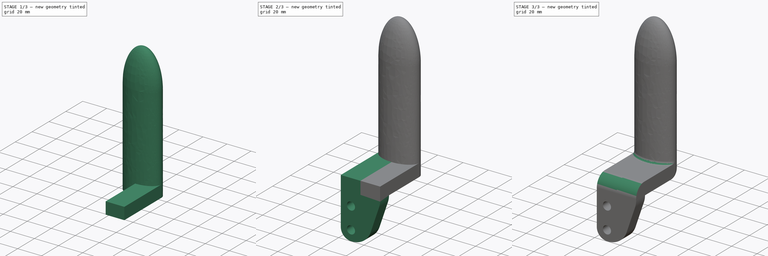
[diagram: build sequence overview — one tinted view per stage of 3, left to right]
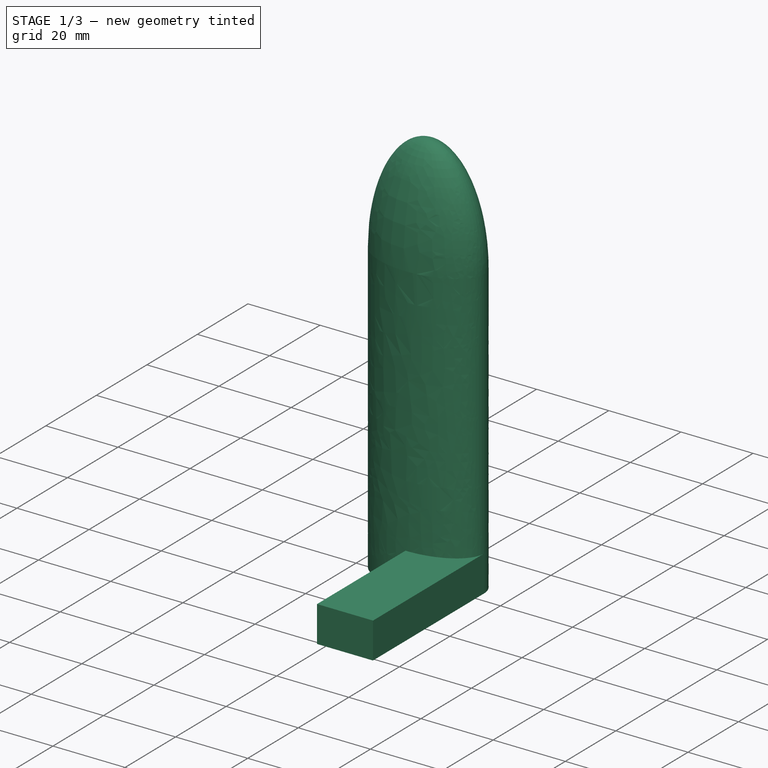
[diagram: stage 1 of 3 — iso view after this stage's code; geometry added in this stage tinted green]
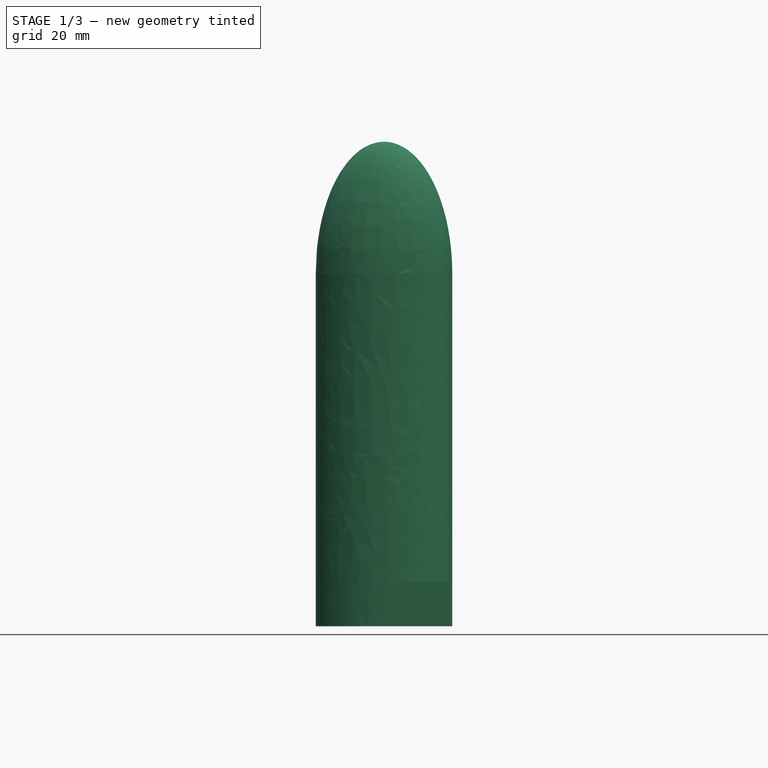
[diagram: stage 1 of 3 — front view after this stage's code; geometry added in this stage tinted green]
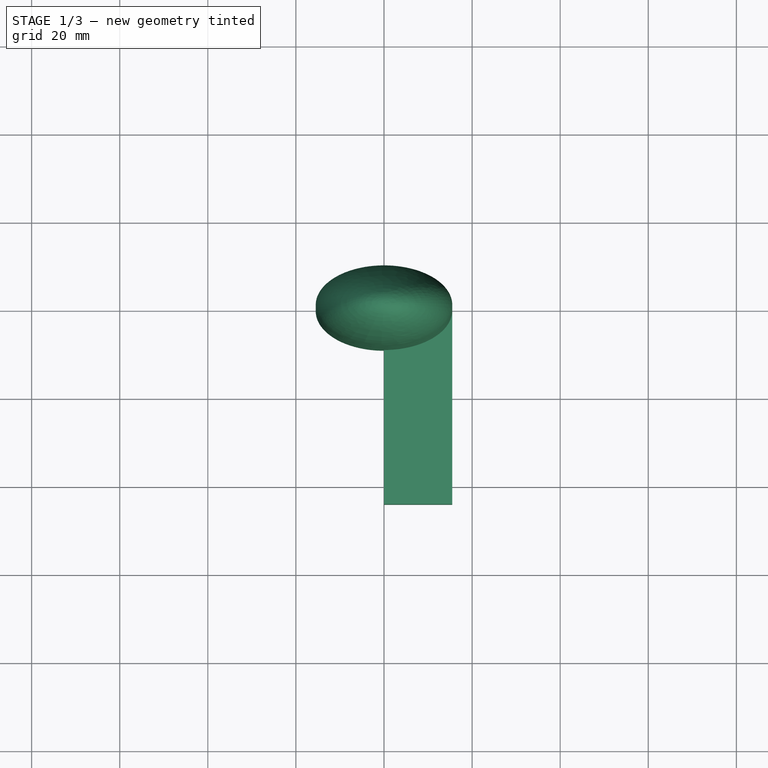
[diagram: stage 1 of 3 — top view after this stage's code; geometry added in this stage tinted green]
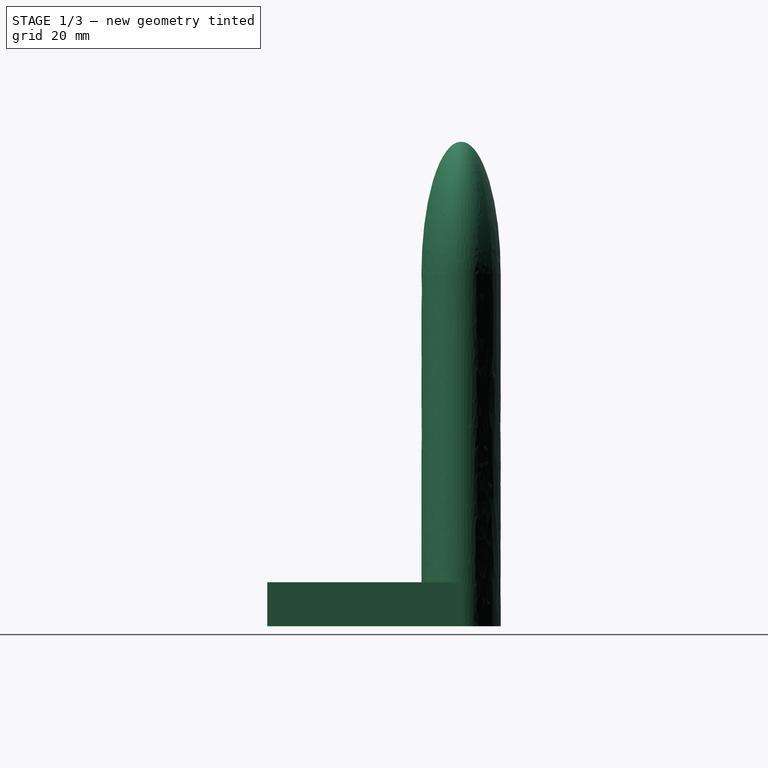
[diagram: stage 1 of 3 — right view after this stage's code; geometry added in this stage tinted green]
FCSTD DOCUMENT  (FreeCAD 0.19R24291 (Git))
Label: Крепление для диспенсера
License: All rights reserved
LicenseURL: http://en.wikipedia.org/wiki/All_rights_reserved
objects: Sketcher::SketchObject×7, PartDesign::Pad×3, Spreadsheet::Sheet×1, PartDesign::AdditiveEllipsoid×1, PartDesign::Plane×1, PartDesign::Mirrored×1, PartDesign::Fillet×1, PartDesign::AdditivePipe×1, PartDesign::SubtractivePipe×1, PartDesign::Body×1
note: 24 computed .brp shape members not serialized (recipe doc carries the construction recipe); baked Part::Feature solids carry a one-line shape summary decoded from their .brp

FEATURE [Spreadsheet::Sheet] Spreadsheet
  cells = A1(x)=31; A2(y)=18; A3(length)=110; A4(cut_height)=30
FEATURE [Sketcher::SketchObject] Sketch
  FullyConstrained = true
  MapMode = 5
  Support = -> [XY_Plane]
  expr: Constraints[6] = Spreadsheet.x
  expr: Constraints[7] = Spreadsheet.y
  sketch-geometry (5):
    g0: Ellipse CenterX=0 CenterY=0 CenterZ=0 NormalX=0 NormalY=0 NormalZ=1 MajorRadius=15.5 MinorRadius=9 AngleXU=0
    g1: LineSegment StartX=15.5 StartY=0 StartZ=0 EndX=-15.5 EndY=0 EndZ=0
    g2: LineSegment StartX=0 StartY=9 StartZ=0 EndX=0 EndY=-9 EndZ=0
    g3: GeomPoint X=12.6194 Y=0 Z=0
    g4: GeomPoint X=-12.6194 Y=0 Z=0
  constraints (5):
    c: InternalAlignment(g1-g4 -> g0) x4
    c: Coincident(g0,g-1)
    c: Horizontal(g1)
    c: Distance(g1) = 31
    c: Distance(g2) = 18
FEATURE [PartDesign::Pad] Pad
  Direction = (1,1,1)
  Length = 80
  Length2 = 100
  Profile = -> Sketch
  Type = 0
  expr: Length = Spreadsheet.length - Spreadsheet.cut_height
FEATURE [PartDesign::AdditiveEllipsoid] Ellipsoid
  Angle1 = -90
  Angle2 = 90
  Angle3 = 360
  AttacherType = Attacher::AttachEngine3D
  AttachmentOffset = pos=(0,0,80) rot=(0,0,1;0rad)
  BaseFeature = -> Pad
  MapMode = 5
  Placement = pos=(0,0,80) rot=(0,0,1;0rad)
  Radius1 = 30
  Radius2 = 15.5
  Radius3 = 9
  Support = -> [XY_Plane]
  expr: Radius1 = Spreadsheet.cut_height
  expr: Radius2 = Spreadsheet.x / 2
  expr: Radius3 = Spreadsheet.y / 2
  expr: .AttachmentOffset.Base.z = Spreadsheet.length - Spreadsheet.cut_height
FEATURE [Sketcher::SketchObject] Sketch006
  FullyConstrained = true
  MapMode = 5
  Support = -> [XY_Plane]
  expr: Constraints[9] = Spreadsheet.x / 2
  sketch-geometry (4):
    g0: LineSegment StartX=0 StartY=0 StartZ=0 EndX=15.5 EndY=0 EndZ=0
    g1: LineSegment StartX=15.5 StartY=0 StartZ=0 EndX=15.5 EndY=-44 EndZ=0
    g2: LineSegment StartX=15.5 StartY=-44 StartZ=0 EndX=0 EndY=-44 EndZ=0
    g3: LineSegment StartX=0 StartY=-44 StartZ=0 EndX=0 EndY=0 EndZ=0
  constraints (11):
    c: Coincident(g0,g1)
    c: Coincident(g1,g2)
    c: Coincident(g2,g3)
    c: Coincident(g3,g0)
    c: Horizontal(g0)
    c: Horizontal(g2)
    c: Vertical(g1)
    c: Vertical(g3)
    c: Coincident(g0,g-1)
    c: Distance(g0) = 15.5
    c: Distance(g1) = 44
FEATURE [PartDesign::Pad] Pad001
  BaseFeature = -> Ellipsoid
  Direction = (1,1,1)
  Length = 10
  Length2 = 100
  Placement = pos=(0,0,80) rot=(0,0,1;0rad)
  Profile = -> Sketch006
  Type = 0
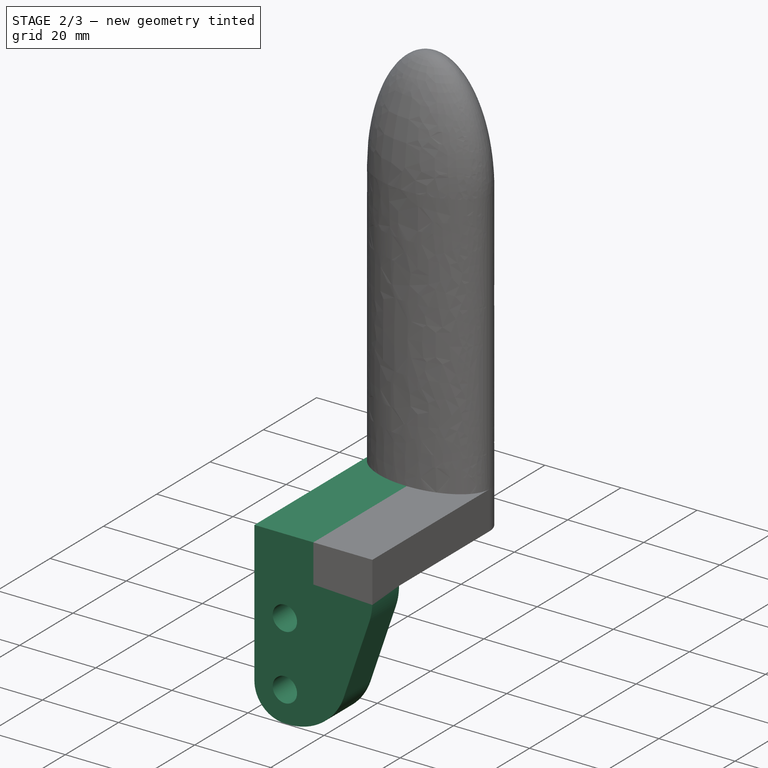
[diagram: stage 2 of 3 — iso view after this stage's code; geometry added in this stage tinted green]
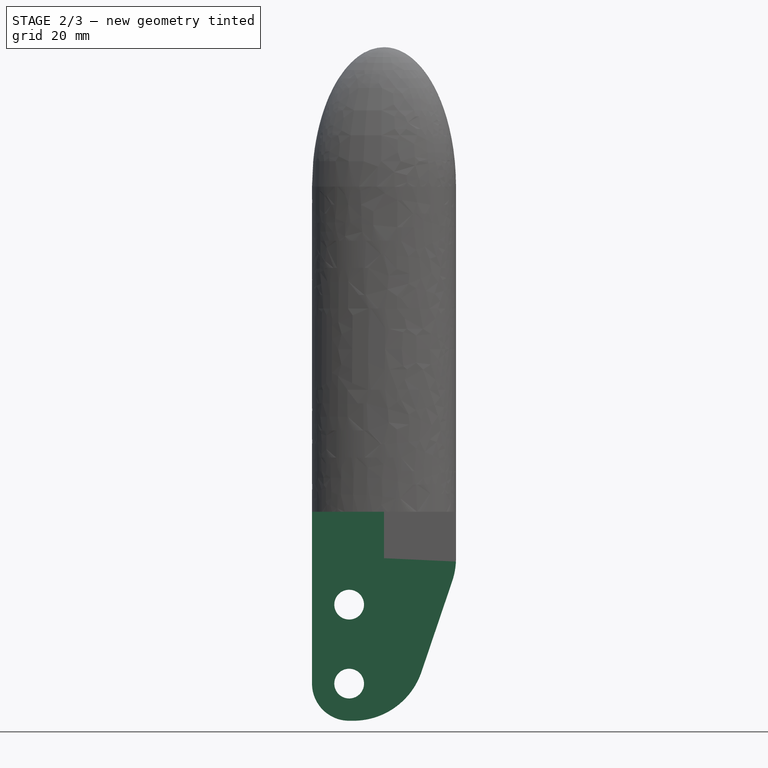
[diagram: stage 2 of 3 — front view after this stage's code; geometry added in this stage tinted green]
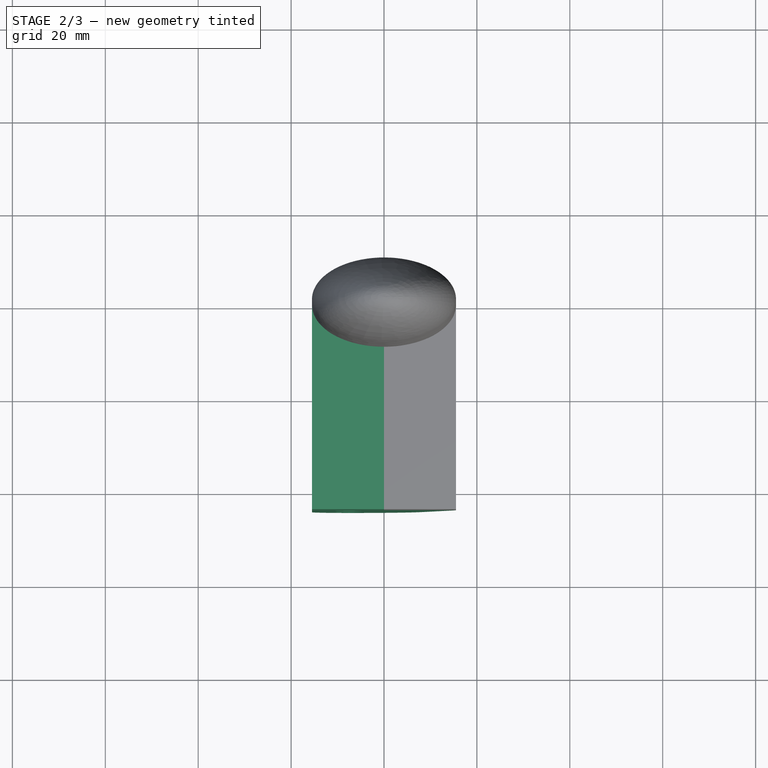
[diagram: stage 2 of 3 — top view after this stage's code; geometry added in this stage tinted green]
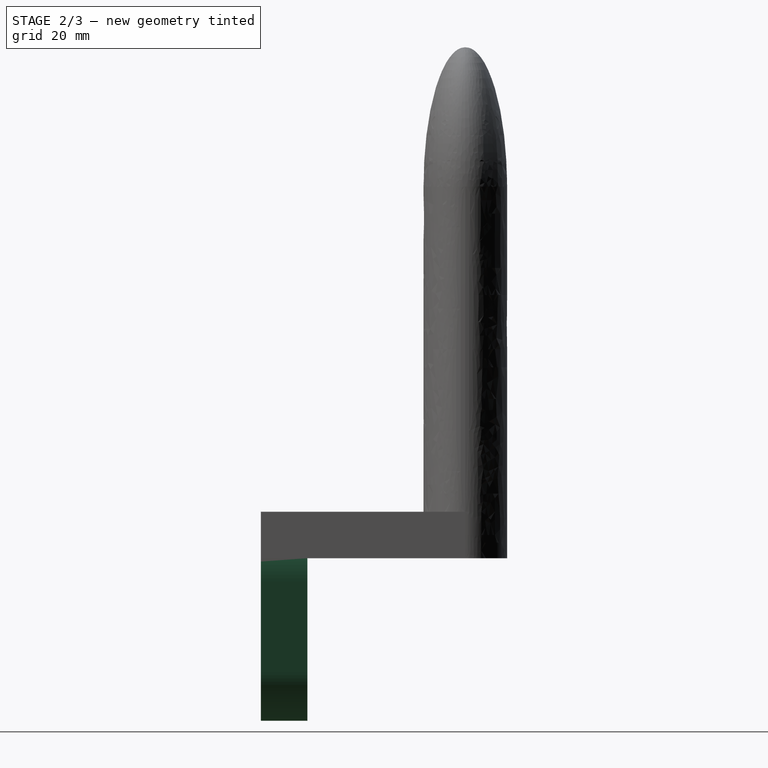
[diagram: stage 2 of 3 — right view after this stage's code; geometry added in this stage tinted green]
FEATURE [PartDesign::Plane] DatumPlane
  AttachmentOffset = pos=(0,0,44) rot=(0,0,1;0rad)
  Length = 67.0294
  MapMode = 5
  Placement = pos=(0,-44,-9.8e-15) rot=(1,0,0;1.5708rad)
  ResizeMode = 0
  Support = -> [XZ_Plane]
  Width = 162.029
FEATURE [Sketcher::SketchObject] Sketch007
  FullyConstrained = true
  MapMode = 5
  Placement = pos=(0,-44,-9.8e-15) rot=(1,0,0;1.5708rad)
  Support = -> [DatumPlane]
  expr: Constraints[14] = Spreadsheet.x
  expr: Constraints[33] = 8
  expr: Constraints[32] = 10
  sketch-geometry (14):
    g0: Circle CenterX=-7.5 CenterY=-27 CenterZ=0 NormalX=0 NormalY=0 NormalZ=1 AngleXU=0 Radius=3.2
    g1: Circle CenterX=-7.5 CenterY=-10 CenterZ=0 NormalX=0 NormalY=0 NormalZ=1 AngleXU=0 Radius=3.2
    g2: ArcOfCircle CenterX=0 CenterY=0 CenterZ=0 NormalX=0 NormalY=0 NormalZ=1 AngleXU=0 Radius=15.5 StartAngle=5.9563 EndAngle=6.28319
    g3: LineSegment StartX=-15.5 StartY=0 StartZ=0 EndX=-15.5 EndY=-27 EndZ=0
    g4: LineSegment StartX=-7.5 StartY=-35 StartZ=0 EndX=-6.61142 EndY=-35 EndZ=0
    g5: LineSegment StartX=8.06781 StartY=-24.477 StartZ=0 EndX=14.6792 EndY=-4.97692 EndZ=0
    g6: LineSegment StartX=15.5 StartY=0 StartZ=0 EndX=0 EndY=0 EndZ=0
    g7: LineSegment StartX=0 StartY=0 StartZ=0 EndX=-15.5 EndY=0 EndZ=0
    g8: ArcOfCircle CenterX=-7.5 CenterY=-27 CenterZ=0 NormalX=0 NormalY=0 NormalZ=1 AngleXU=0 Radius=8 StartAngle=3.14159 EndAngle=4.71239
    g9: ArcOfCircle CenterX=-6.61142 CenterY=-19.5 CenterZ=0 NormalX=0 NormalY=0 NormalZ=1 AngleXU=0 Radius=15.5 StartAngle=4.71239 EndAngle=5.9563
    g10: LineSegment StartX=-6.61142 StartY=-35 StartZ=0 EndX=4.5 EndY=-35 EndZ=0
    g11: LineSegment StartX=4.5 StartY=-35 StartZ=0 EndX=8.06781 EndY=-24.477 EndZ=0
    g12: LineSegment StartX=-15.5 StartY=-27 StartZ=0 EndX=-15.5 EndY=-35 EndZ=0
    g13: LineSegment StartX=-7.5 StartY=-35 StartZ=0 EndX=-15.5 EndY=-35 EndZ=0
  constraints (36):
    c: Vertical(g0,g1)
    c: Equal(g0,g1)
    c: Diameter(g0) = 6.4
    c: Coincident(g2,g-1)
    c: Vertical(g3)
    c: Horizontal(g4)
    c: Coincident(g5,g2)
    c: Coincident(g6,g2)
    c: Coincident(g6,g2)
    c: Horizontal(g6)
    c: Coincident(g7,g2)
    c: Coincident(g7,g3)
    c: Horizontal(g7)
    c: Equal(g6,g7)
    c: Distance(g2,g3) = 31
    c: Tangent(g2,g5)
    c: Tangent(g4,g8) = -1.5708
    c: Tangent(g3,g8) = -1.5708
    c: Tangent(g4,g9) = -1.5708
    c: Tangent(g5,g9) = -1.5708
    c: Coincident(g10,g4)
    c: Horizontal(g10)
    c: Coincident(g11,g10)
    c: Coincident(g11,g5)
    c: Parallel(g5,g11)
    c: Coincident(g12,g3)
    c: Vertical(g12)
    c: Coincident(g13,g4)
    c: Coincident(g13,g12)
    c: Horizontal(g13)
    c: Distance(g10,g12) = 20
    c: DistanceY(g4,g2) = 35
    c: Distance(g1,g7) = 10
    c: Distance(g1,g3) = 8
    c: Coincident(g0,g8)
    c: Equal(g9,g2)
FEATURE [PartDesign::Mirrored] Mirrored
  BaseFeature = -> Pad001
  MirrorPlane = -> Sketch006 [V_Axis]
  Originals = -> [Pad001]
  Placement = pos=(0,0,80) rot=(0,0,1;0rad)
FEATURE [PartDesign::Pad] Pad002
  BaseFeature = -> Mirrored
  Direction = (1,1,1)
  Length = 10
  Length2 = 100
  Placement = pos=(0,0,80) rot=(0,0,1;0rad)
  Profile = -> Sketch007
  Reversed = true
  Type = 0
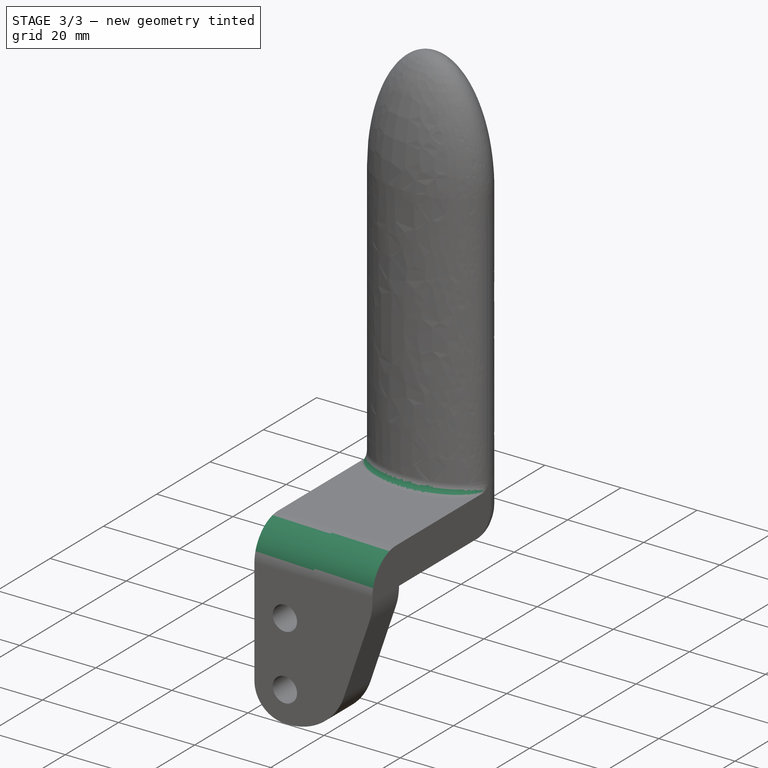
[diagram: stage 3 of 3 — iso view after this stage's code; geometry added in this stage tinted green]
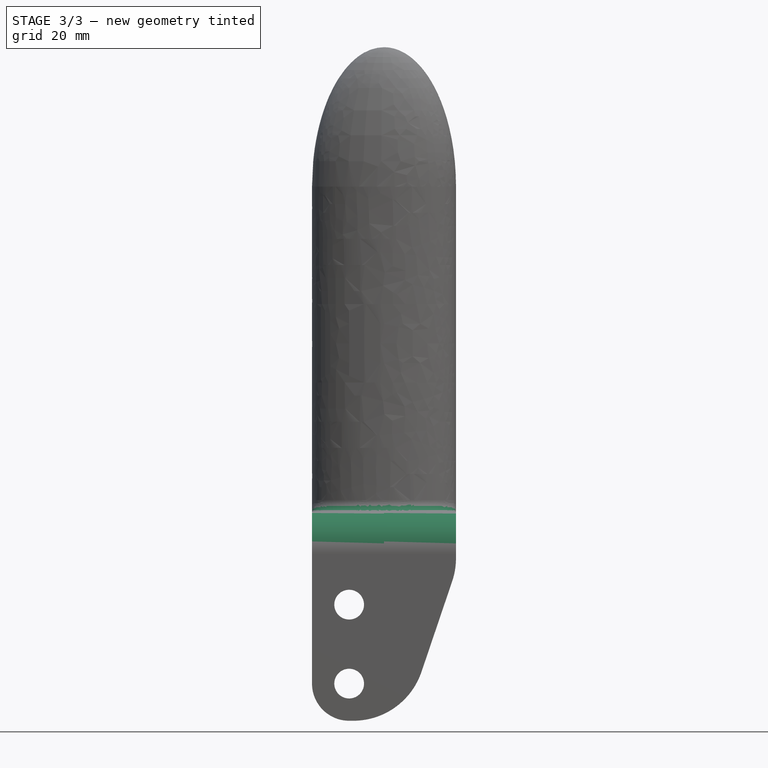
[diagram: stage 3 of 3 — front view after this stage's code; geometry added in this stage tinted green]
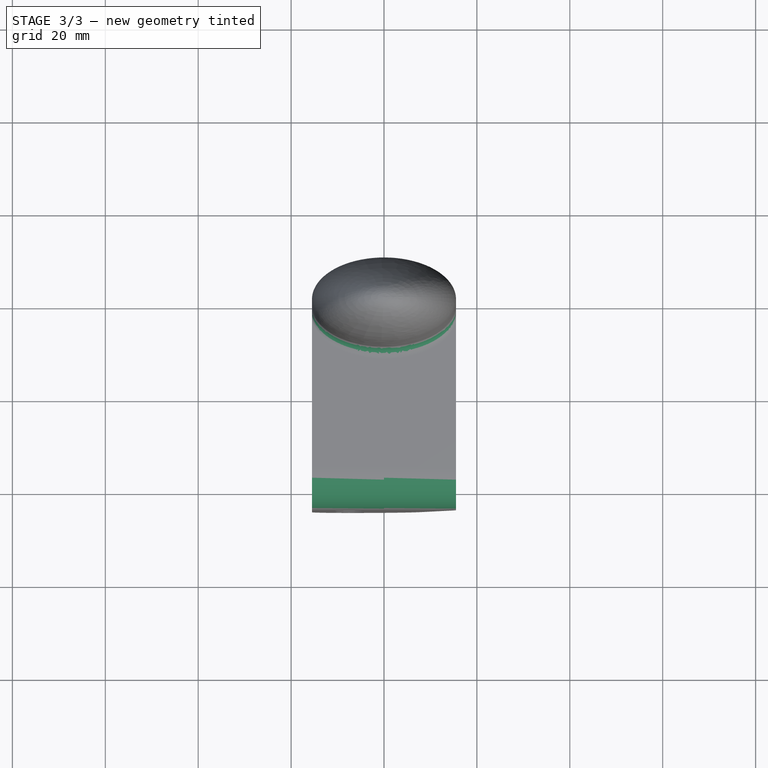
[diagram: stage 3 of 3 — top view after this stage's code; geometry added in this stage tinted green]
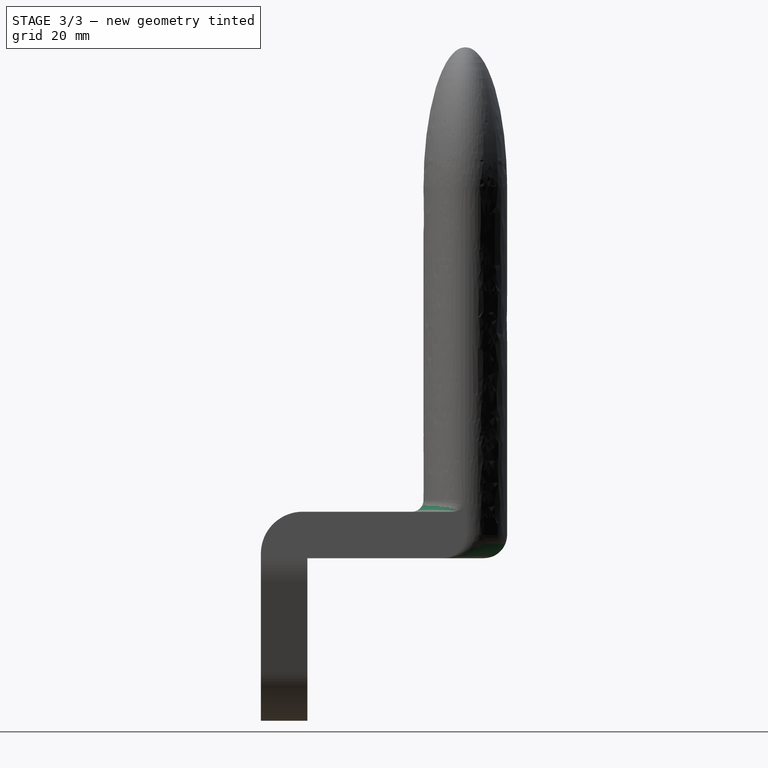
[diagram: stage 3 of 3 — right view after this stage's code; geometry added in this stage tinted green]
FEATURE [PartDesign::Fillet] Fillet
  Base = -> Pad002 [Edge15]
  BaseFeature = -> Pad002
  Placement = pos=(0,0,80) rot=(0,0,1;0rad)
  Radius = 9
  SupportTransform = false
FEATURE [Sketcher::SketchObject] Sketch008
  FullyConstrained = true
  MapMode = 5
  Placement = pos=(0,0,0) rot=(0.57735,0.57735,0.57735;2.0944rad)
  Support = -> [YZ_Plane]
  expr: Constraints[8] = Spreadsheet.y / 2
  sketch-geometry (3):
    g0: ArcOfCircle CenterX=-11.5 CenterY=12.5 CenterZ=0 NormalX=0 NormalY=0 NormalZ=1 AngleXU=0 Radius=2.5 StartAngle=4.71238 EndAngle=6.28319
    g1: LineSegment StartX=-11.5 StartY=10 StartZ=0 EndX=-9 EndY=10 EndZ=0
    g2: LineSegment StartX=-9 StartY=12.5 StartZ=0 EndX=-9 EndY=10 EndZ=0
  constraints (10):
    c: Coincident(g1,g0)
    c: Horizontal(g1)
    c: Tangent(g1,g0)
    c: Coincident(g2,g0)
    c: Coincident(g2,g1)
    c: Vertical(g2)
    c: Tangent(g0,g2)
    c: DistanceY(g-1,g1) = 10
    c: DistanceX(g1,g-1) = 9
    c: Radius(g0) = 2.5
FEATURE [Sketcher::SketchObject] Sketch009
  FullyConstrained = true
  MapMode = 5
  Support = -> [XY_Plane]
  expr: Constraints[8] = Spreadsheet.x
  expr: Constraints[7] = Spreadsheet.y
  sketch-geometry (10):
    g0: ArcOfEllipse CenterX=0 CenterY=0 CenterZ=0 NormalX=0 NormalY=0 NormalZ=1 MajorRadius=15.5 MinorRadius=9 AngleXU=0 StartAngle=3.14159 EndAngle=6.28319
    g1: LineSegment StartX=15.5 StartY=0 StartZ=0 EndX=-15.5 EndY=0 EndZ=0
    g2: LineSegment StartX=0 StartY=9 StartZ=0 EndX=0 EndY=-9 EndZ=0
    g3: GeomPoint X=12.6194 Y=0 Z=0
    g4: GeomPoint X=-12.6194 Y=0 Z=0
    g5: ArcOfEllipse CenterX=0 CenterY=0 CenterZ=0 NormalX=0 NormalY=0 NormalZ=1 MajorRadius=15.5 MinorRadius=9 AngleXU=1e-16 StartAngle=0 EndAngle=3.14159
    g6: LineSegment StartX=15.5 StartY=8e-16 StartZ=0 EndX=-15.5 EndY=-8e-16 EndZ=0
    g7: LineSegment StartX=0 StartY=9 StartZ=0 EndX=0 EndY=-9 EndZ=0
    g8: GeomPoint X=12.6194 Y=1e-15 Z=0
    g9: GeomPoint X=-12.6194 Y=-1e-15 Z=0
  constraints (13):
    c: InternalAlignment(g1-g4 -> g0) x4
    c: Coincident(g0,g-1)
    c: PointOnObject(g0,g-1)
    c: Horizontal(g1)
    c: Distance(g2) = 18
    c: Distance(g1) = 31
    c: Horizontal(g0,g0)
    c: InternalAlignment(g6-g9 -> g5) x4
    c: Coincident(g5,g0)
    c: Coincident(g5,g0)
    c: Horizontal(g5,g0)
    c: Equal(g7,g2)
    c: Vertical(g7)
FEATURE [Sketcher::SketchObject] Sketch010
  FullyConstrained = true
  MapMode = 5
  Placement = pos=(0,0,0) rot=(0.57735,0.57735,0.57735;2.0944rad)
  Support = -> [YZ_Plane]
  expr: Constraints[7] = Spreadsheet.y / 2
  sketch-geometry (3):
    g0: ArcOfCircle CenterX=4 CenterY=5 CenterZ=0 NormalX=0 NormalY=0 NormalZ=1 AngleXU=0 Radius=5 StartAngle=4.71239 EndAngle=6.28318
    g1: LineSegment StartX=9 StartY=4.99998 StartZ=0 EndX=9 EndY=0 EndZ=0
    g2: LineSegment StartX=9 StartY=0 StartZ=0 EndX=4 EndY=0 EndZ=0
  constraints (10):
    c: PointOnObject(g0,g-1)
    c: Coincident(g1,g0)
    c: PointOnObject(g1,g-1)
    c: Vertical(g1)
    c: Coincident(g2,g1)
    c: Coincident(g2,g0)
    c: Diameter(g0) = 10
    c: DistanceX(g-1,g1) = 9
    c: Tangent(g0,g2)
    c: Tangent(g1,g0)
FEATURE [PartDesign::AdditivePipe] AdditivePipe
  AuxilleryCurvelinear = true
  AuxillerySpineTangent = false
  BaseFeature = -> Fillet
  Binormal = (0,0,0)
  Mode = 1
  Placement = pos=(0,0,80) rot=(0,0,1;0rad)
  Profile = -> Sketch008
  Spine = -> Sketch009 [Edge1]
  SpineTangent = false
  Transformation = 0
  Transition = 0
FEATURE [PartDesign::SubtractivePipe] SubtractivePipe
  AuxilleryCurvelinear = true
  AuxillerySpineTangent = false
  BaseFeature = -> AdditivePipe
  Binormal = (0,0,0)
  Mode = 1
  Placement = pos=(0,0,80) rot=(0,0,1;0rad)
  Profile = -> Sketch010
  Spine = -> Sketch009 [Edge2]
  SpineTangent = false
  Transformation = 0
  Transition = 0
FEATURE [Sketcher::SketchObject] Sketch011
  FullyConstrained = true
  MapMode = 5
  Placement = pos=(0,0,0) rot=(1,0,0;1.5708rad)
  Support = -> [XZ_Plane]
  expr: Constraints[9] = Spreadsheet.x / 2
  sketch-geometry (3):
    g0: ArcOfCircle CenterX=-10.5 CenterY=5 CenterZ=0 NormalX=0 NormalY=0 NormalZ=1 AngleXU=0 Radius=5 StartAngle=1.5708 EndAngle=3.14159
    g1: LineSegment StartX=-15.5 StartY=5.00001 StartZ=0 EndX=-15.5 EndY=10 EndZ=0
    g2: LineSegment StartX=-10.5 StartY=10 StartZ=0 EndX=-15.5 EndY=10 EndZ=0
  constraints (10):
    c: Diameter(g0) = 10
    c: Coincident(g1,g0)
    c: Vertical(g1)
    c: Tangent(g1,g0)
    c: Coincident(g2,g0)
    c: Coincident(g2,g1)
    c: Horizontal(g2)
    c: Tangent(g0,g2)
    c: DistanceY(g-1,g1) = 10
    c: DistanceX(g1,g-1) = 15.5
FEATURE [PartDesign::Body] Body
  Group = -> [Sketch,Pad,Ellipsoid,Sketch006,Pad001,DatumPlane,Sketch007,Mirrored,Pad002,Fillet,Sketch008,Sketch009,Sketch010,AdditivePipe,SubtractivePipe,Sketch011]
  Origin = -> Origin
  Tip = -> SubtractivePipe
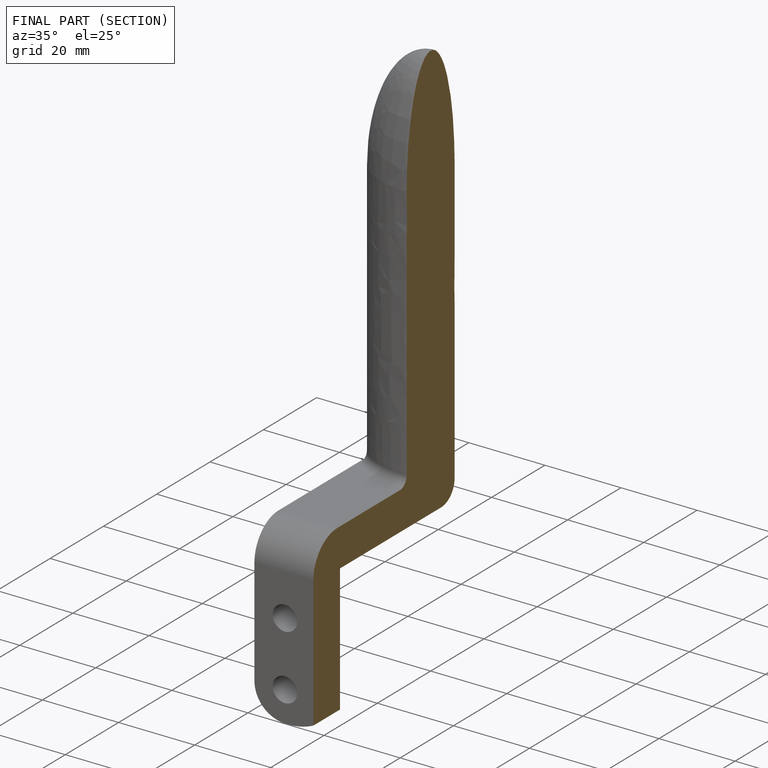
[diagram: finished part — half-section view (interior)]
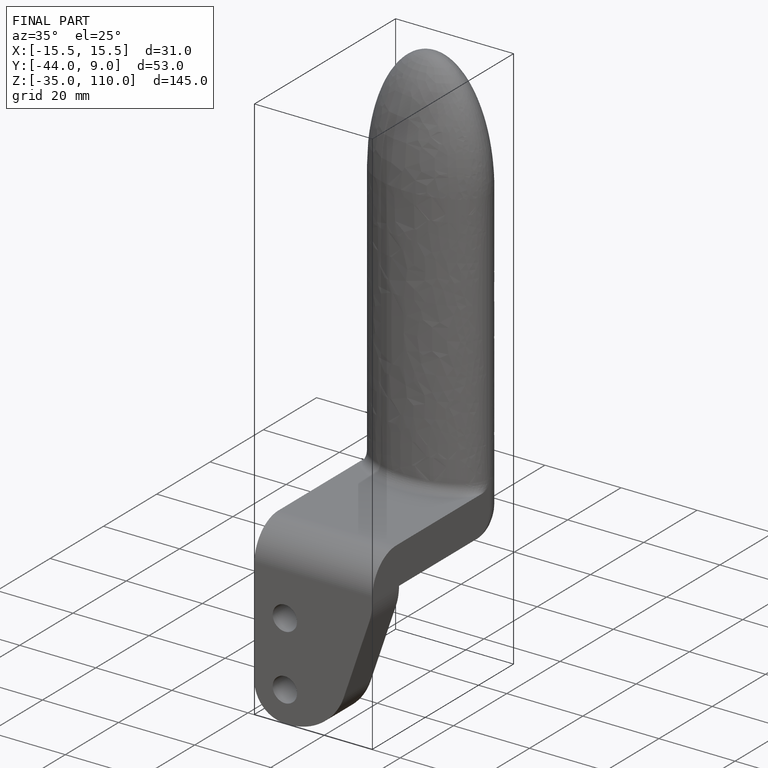
[diagram: finished part — iso view with bounding-box wireframe]
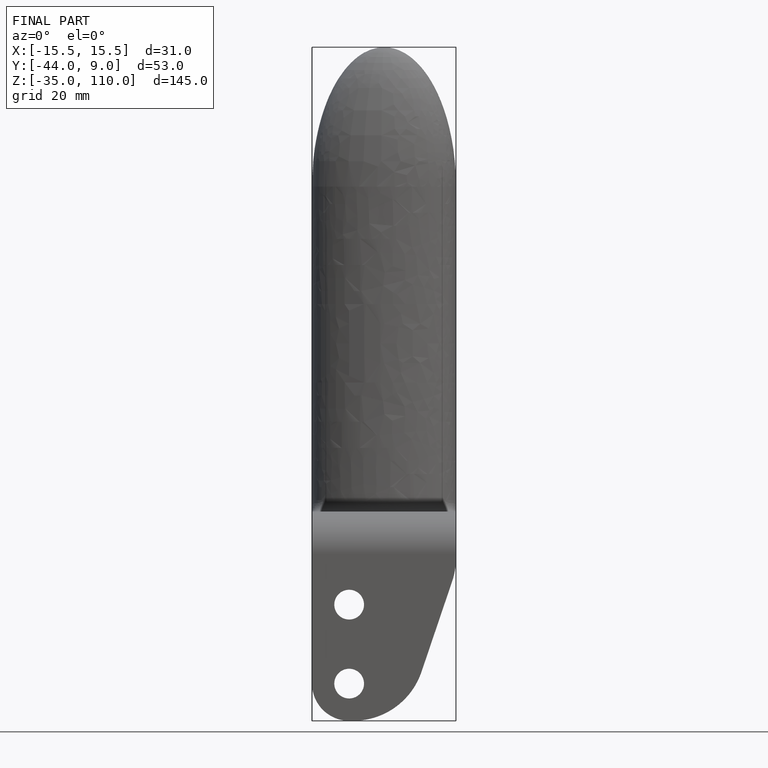
[diagram: finished part — front view with bounding-box wireframe]
